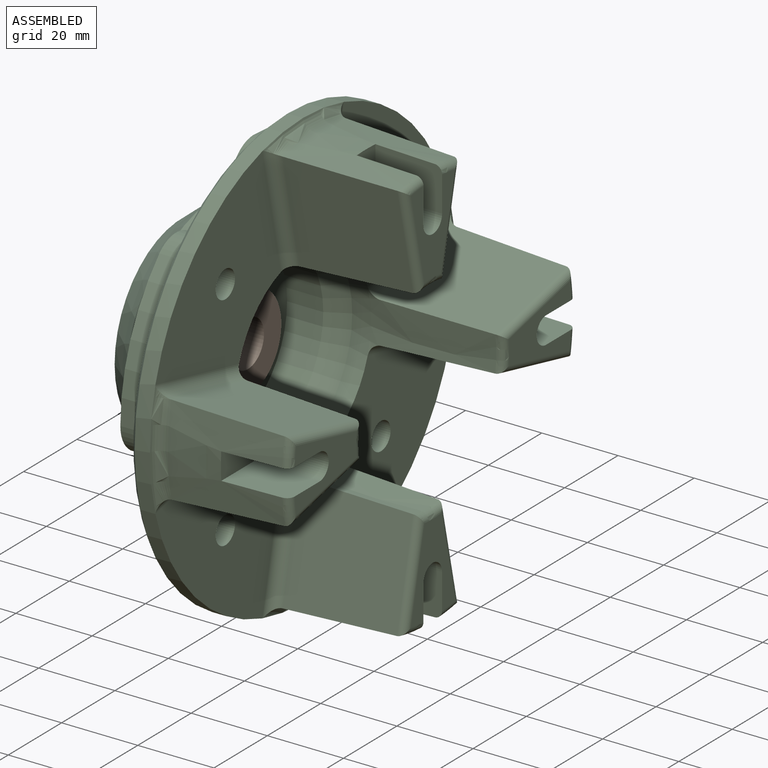
[diagram: assembled view]
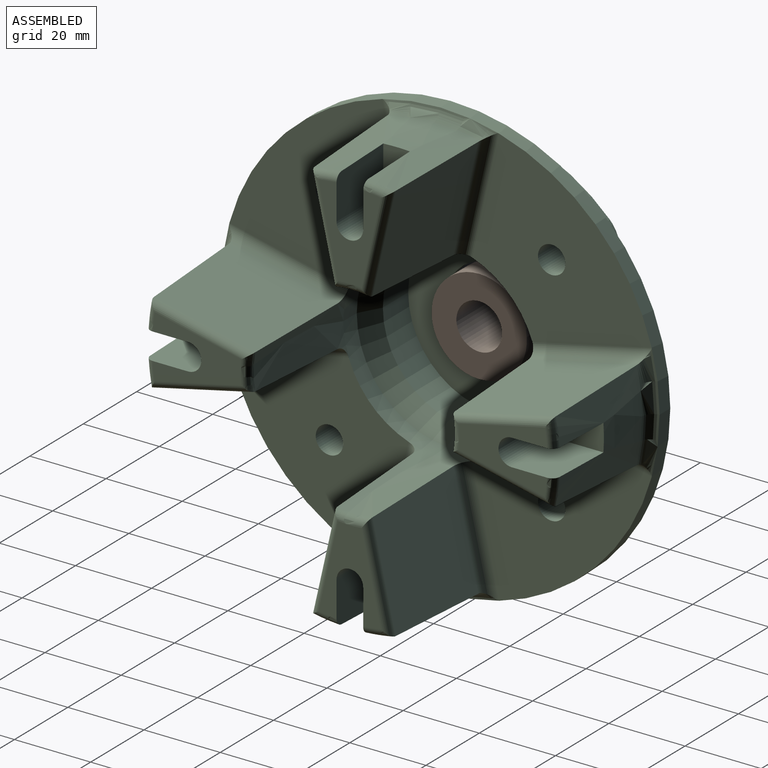
[diagram: assembled view, second angle]
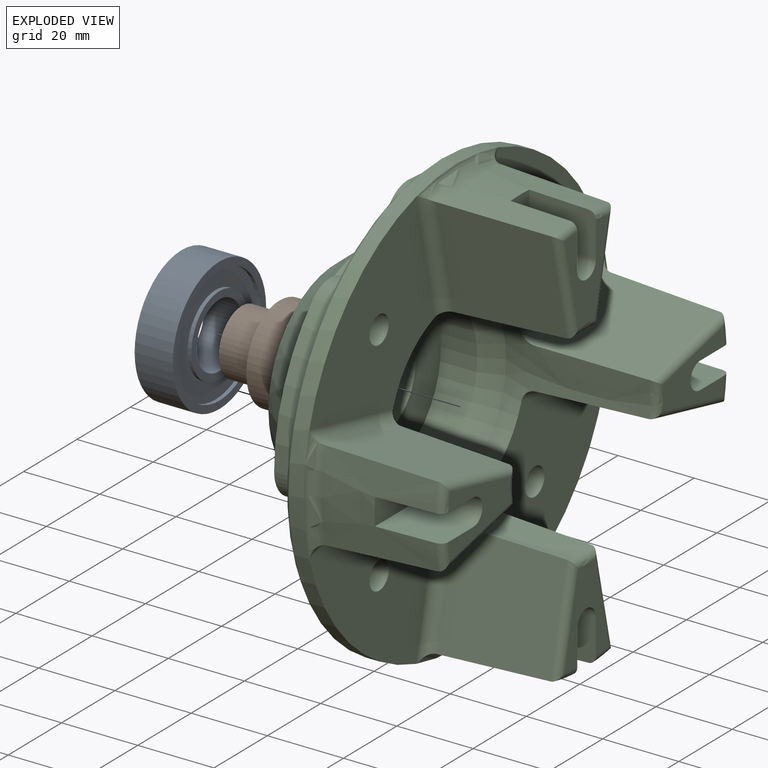
[diagram: exploded view]
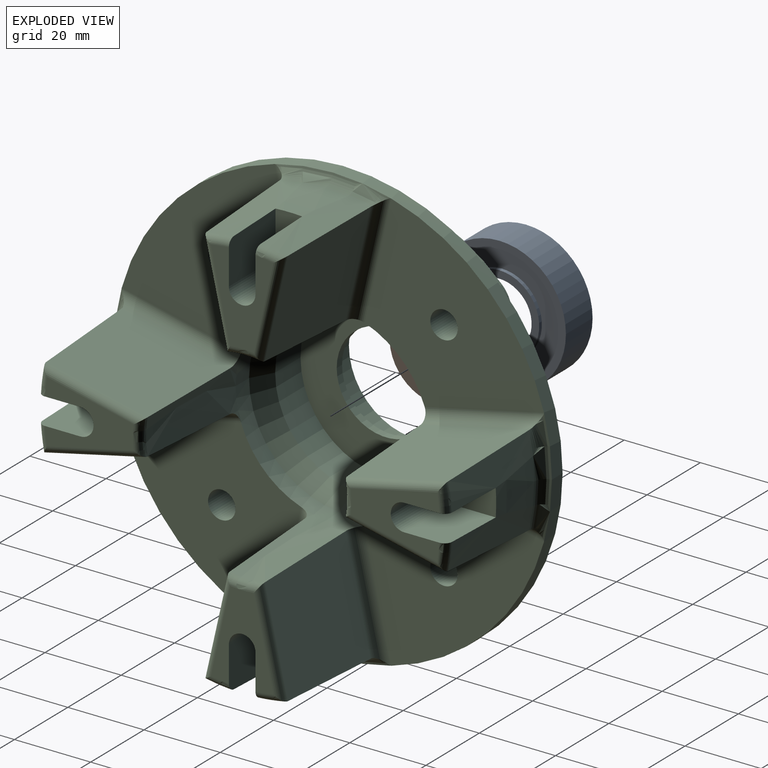
[diagram: exploded view, second angle]
ASSEMBLY  parts=3 mates=4
PART A: 12 faces, bbox 10x35x35 mm
  f0: plane 35x35mm, normal (-1,0,0), area 207.3mm2, adj f1,f11
  f1: cylinder r=15.5mm len=31mm, axis (-1,0,0), area 97.4mm2, adj f0,f2
  f2: plane 31x31mm, normal (-1,0,0), area 408.4mm2, adj f1,f3
  f3: cylinder r=10.5mm len=21mm, axis (-1,0,0), area 66mm2, adj f2,f4
  f4: plane 21x21mm, normal (-1,0,0), area 119.4mm2, adj f3,f5
  f5: cylinder r=8.5mm len=17mm, axis (-1,0,0), area 534.1mm2, adj f4,f6
  f6: plane 21x21mm, normal (1,0,0), area 119.4mm2, adj f5,f7
  f7: cylinder r=10.5mm len=21mm, axis (-1,0,0), area 66mm2, adj f6,f8
  f8: plane 31x31mm, normal (1,0,0), area 408.4mm2, adj f7,f9
  f9: cylinder r=15.5mm len=31mm, axis (-1,0,0), area 97.4mm2, adj f8,f10
  f10: plane 35x35mm, normal (1,0,0), area 207.3mm2, adj f9,f11
  f11: cylinder r=17.5mm len=35mm, axis (-1,0,0), area 1099.6mm2, adj f0,f10
PART B: 6 faces, bbox 17.5x25x25 mm
  f0: cylinder r=8.5mm len=17mm, axis (-1,0,0), area 534.1mm2, adj f1,f5
  f1: plane 17x17mm, normal (-1,0,0), area 113.9mm2, adj f0,f2
  f2: cylinder r=6mm len=17.5mm, axis (-1,0,0), area 659.7mm2, adj f1,f3
  f3: plane 25x25mm, normal (1,0,0), area 377.8mm2, adj f2,f4
  f4: cylinder r=12.5mm len=25mm, axis (-1,0,0), area 589mm2, adj f3,f5
  f5: plane 25x25mm, normal (-1,0,0), area 263.9mm2, adj f0,f4
PART C: 134 faces, bbox 125.4x66.1x125.4 mm
  f0: cone r=55mm half-angle=2deg, axis (0,-1,0), area 554mm2, adj f2,f45,f46,f89,f104,f105,f106,f128
  f1: plane 23.31x16.5mm, normal (0,1,0), area 180.5mm2, adj f2,f88,f89,f90,f91,f129,f130,f131
  f2: torus R=51.88mm, axis (0,1,0), area 19.4mm2, adj f0,f1,f91,f130
  f3: cone r=55mm half-angle=2deg, axis (0,-1,0), area 554mm2, adj f5,f42,f43,f93,f107,f108,f109,f124
  f4: plane 23.31x16.5mm, normal (0,1,0), area 180.5mm2, adj f5,f92,f93,f94,f95,f125,f126,f127
  f5: torus R=51.88mm, axis (0,1,0), area 19.4mm2, adj f3,f4,f95,f126
  f6: cone r=55mm half-angle=2deg, axis (0,-1,0), area 554mm2, adj f8,f39,f40,f97,f110,f111,f112,f120
  f7: plane 23.31x16.5mm, normal (0,1,0), area 180.5mm2, adj f8,f96,f97,f98,f99,f121,f122,f123
  f8: torus R=51.88mm, axis (0,1,0), area 19.4mm2, adj f6,f7,f99,f122
  f9: cone r=55mm half-angle=2deg, axis (0,-1,0), area 554mm2, adj f11,f36,f37,f101,f113,f114,f115,f116
  f10: plane 23.31x16.5mm, normal (0,1,0), area 180.5mm2, adj f11,f100,f101,f102,f103,f117,f118,f119
  f11: torus R=51.88mm, axis (0,1,0), area 19.4mm2, adj f9,f10,f103,f118
  f12: plane 47.12x47.12mm, normal (0,1,0), area 1277.5mm2, adj f28,f30,f56,f106,f107
  f13: plane 47.12x47.12mm, normal (0,1,0), area 1277.5mm2, adj f28,f30,f53,f109,f110
  f14: plane 47.12x47.12mm, normal (0,1,0), area 1277.5mm2, adj f28,f30,f50,f112,f113
  f15: plane 50.36x37.56mm, normal (0,-1,0), area 764.5mm2, adj f16,f33,f58,f59,f60,f62,f69,f70
  f16: cylinder r=50mm len=35.36mm, axis (0,-1,0), area 196.3mm2, adj f15,f62,f70,f83
  f17: plane 50.36x37.56mm, normal (0,-1,0), area 764.5mm2, adj f18,f33,f55,f56,f66,f67,f69,f71
  f18: cylinder r=50mm len=35.36mm, axis (0,-1,0), area 196.3mm2, adj f17,f67,f71,f84
  f19: plane 50.36x37.56mm, normal (0,-1,0), area 764.5mm2, adj f20,f33,f52,f53,f63,f64,f66,f68
  f20: cylinder r=50mm len=35.36mm, axis (0,-1,0), area 196.3mm2, adj f19,f64,f68,f76
  f21: plane 50.36x37.56mm, normal (0,-1,0), area 764.5mm2, adj f32,f33,f49,f50,f60,f61,f63,f65
  f22: cylinder r=17.5mm len=35mm, axis (0,-1,0), area 989.6mm2, adj f23,f133
  f23: plane 35x35mm, normal (0,-1,0), area 431.2mm2, adj f22,f24
  f24: cylinder r=13mm len=26mm, axis (0,-1,0), area 163.4mm2, adj f23,f25
  f25: plane 45x45mm, normal (0,1,0), area 1059.5mm2, adj f24,f26
  f26: cylinder r=22.5mm len=45mm, axis (0,-1,0), area 1343mm2, adj f25,f27
  f27: cone r=25.5mm half-angle=28.6deg, axis (0,1,0), area 944.7mm2, adj f26,f28
  f28: cylinder r=25.5mm len=51mm, axis (0,-1,0), area 801.1mm2, adj f12,f13,f14,f27,f29,f38,f41,f44
  f29: plane 47.12x47.12mm, normal (0,1,0), area 1277.5mm2, adj f28,f30,f59,f104,f115
  f30: cylinder r=57.5mm len=115mm, axis (0,-1,0), area 1445.1mm2, adj f12,f13,f14,f29,f105,f108,f111,f114
  f31: plane 113x113mm, normal (0,-1,0), area 2183mm2, adj f72,f73,f74,f75,f76,f77,f78,f79
  f32: cylinder r=50mm len=35.36mm, axis (0,-1,0), area 196.3mm2, adj f21,f61,f65,f75
  f33: cylinder r=32.5mm len=65mm, axis (0,-1,0), area 2042mm2, adj f15,f17,f19,f21,f34
  f34: cone r=25mm half-angle=39.8deg, axis (0,1,0), area 2116.3mm2, adj f33,f35
  f35: plane 50x50mm, normal (0,-1,0), area 888.3mm2, adj f34,f133
  f36: plane 29.19x28.6mm, normal (-0.97,0.03,-0.22), area 825.7mm2, adj f9,f38,f100,f113
  f37: plane 29.19x28.6mm, normal (0.97,0.03,-0.22), area 825.7mm2, adj f9,f38,f103,f115
  f38: cone r=25.5mm half-angle=2deg, axis (0,1,0), area 331.8mm2, adj f28,f36,f37,f102,f113,f115
  f39: plane 29.19x28.6mm, normal (0.22,0.03,-0.97), area 825.7mm2, adj f6,f41,f96,f110
  f40: plane 29.19x28.6mm, normal (0.22,0.03,0.97), area 825.7mm2, adj f6,f41,f99,f112
  f41: cone r=25.5mm half-angle=2deg, axis (0,1,0), area 331.8mm2, adj f28,f39,f40,f98,f110,f112
  f42: plane 29.19x28.6mm, normal (0.97,0.03,0.22), area 825.7mm2, adj f3,f44,f92,f107
  f43: plane 29.19x28.6mm, normal (-0.97,0.03,0.22), area 825.7mm2, adj f3,f44,f95,f109
  f44: cone r=25.5mm half-angle=2deg, axis (0,1,0), area 331.8mm2, adj f28,f42,f43,f94,f107,f109
  f45: plane 29.19x28.6mm, normal (-0.22,0.03,0.97), area 825.7mm2, adj f0,f47,f88,f104
  f46: plane 29.19x28.6mm, normal (-0.22,0.03,-0.97), area 825.7mm2, adj f0,f47,f91,f106
  f47: cone r=25.5mm half-angle=2deg, axis (0,1,0), area 331.8mm2, adj f28,f45,f46,f90,f104,f106
  f48: cone r=0mm half-angle=59deg, axis (0,-1,0), area 47.5mm2, adj f49
  f49: cylinder r=3.6mm len=25mm, axis (0,-1,0), area 565.5mm2, adj f21,f48
  f50: cylinder r=3.6mm len=13mm, axis (0,-1,0), area 294.1mm2, adj f14,f21
  f51: cone r=0mm half-angle=59deg, axis (0,-1,0), area 47.5mm2, adj f52
  f52: cylinder r=3.6mm len=25mm, axis (0,-1,0), area 565.5mm2, adj f19,f51
  f53: cylinder r=3.6mm len=13mm, axis (0,-1,0), area 294.1mm2, adj f13,f19
  f54: cone r=0mm half-angle=59deg, axis (0,-1,0), area 47.5mm2, adj f55
  f55: cylinder r=3.6mm len=25mm, axis (0,-1,0), area 565.5mm2, adj f17,f54
  f56: cylinder r=3.6mm len=13mm, axis (0,-1,0), area 294.1mm2, adj f12,f17
  f57: cone r=0mm half-angle=59deg, axis (0,-1,0), area 47.5mm2, adj f58
  f58: cylinder r=3.6mm len=25mm, axis (0,-1,0), area 565.5mm2, adj f15,f57
  f59: cylinder r=3.6mm len=13mm, axis (0,-1,0), area 294.1mm2, adj f15,f29
  f60: cylinder r=7.11mm len=13.39mm, axis (0,-1,0), area 104.9mm2, adj f15,f21,f61,f62,f79
  f61: cylinder r=8.75mm len=11.32mm, axis (0,-1,0), area 81.8mm2, adj f21,f32,f60,f77
  f62: cylinder r=8.75mm len=13.92mm, axis (0,-1,0), area 81.8mm2, adj f15,f16,f60,f81
  f63: cylinder r=7.11mm len=13.39mm, axis (0,-1,0), area 104.9mm2, adj f19,f21,f64,f65,f72
  f64: cylinder r=8.75mm len=11.32mm, axis (0,-1,0), area 81.8mm2, adj f19,f20,f63,f74
  f65: cylinder r=8.75mm len=13.92mm, axis (0,-1,0), area 81.8mm2, adj f21,f32,f63,f73
  f66: cylinder r=7.11mm len=13.39mm, axis (0,-1,0), area 104.9mm2, adj f17,f19,f67,f68,f80
  f67: cylinder r=8.75mm len=11.32mm, axis (0,-1,0), area 81.8mm2, adj f17,f18,f66,f82
  f68: cylinder r=8.75mm len=13.92mm, axis (0,-1,0), area 81.8mm2, adj f19,f20,f66,f78
  f69: cylinder r=7.11mm len=13.39mm, axis (0,-1,0), area 104.9mm2, adj f15,f17,f70,f71,f87
  f70: cylinder r=8.75mm len=11.32mm, axis (0,-1,0), area 81.8mm2, adj f15,f16,f69,f85
  f71: cylinder r=8.75mm len=13.92mm, axis (0,-1,0), area 81.8mm2, adj f17,f18,f69,f86
  f72: torus R=4.11mm, axis (0,1,0), area 83.7mm2, adj f31,f63,f73,f74
  f73: torus R=11.75mm, axis (0,1,0), area 86.7mm2, adj f31,f65,f72,f75
  f74: torus R=11.75mm, axis (0,1,0), area 86.7mm2, adj f31,f64,f72,f76
  f75: torus R=53mm, axis (0,1,0), area 189.1mm2, adj f31,f32,f73,f77
  f76: torus R=53mm, axis (0,1,0), area 189.1mm2, adj f20,f31,f74,f78
  f77: torus R=11.75mm, axis (0,1,0), area 86.7mm2, adj f31,f61,f75,f79
  f78: torus R=11.75mm, axis (0,1,0), area 86.7mm2, adj f31,f68,f76,f80
  f79: torus R=4.11mm, axis (0,1,0), area 83.7mm2, adj f31,f60,f77,f81
  f80: torus R=4.11mm, axis (0,1,0), area 83.7mm2, adj f31,f66,f78,f82
  f81: torus R=11.75mm, axis (0,1,0), area 86.7mm2, adj f31,f62,f79,f83
  f82: torus R=11.75mm, axis (0,1,0), area 86.7mm2, adj f31,f67,f80,f84
  f83: torus R=53mm, axis (0,1,0), area 189.1mm2, adj f16,f31,f81,f85
  f84: torus R=53mm, axis (0,1,0), area 189.1mm2, adj f18,f31,f82,f86
  f85: torus R=11.75mm, axis (0,1,0), area 86.7mm2, adj f31,f70,f83,f87
  f86: torus R=11.75mm, axis (0,1,0), area 86.7mm2, adj f31,f71,f84,f87
  f87: torus R=4.11mm, axis (0,1,0), area 83.7mm2, adj f31,f69,f85,f86
  f88: cylinder r=2mm len=27.05mm, axis (0.98,0,0.22), area 79.3mm2, adj f1,f45,f89,f90
  f89: torus R=51.88mm, axis (0,1,0), area 19.4mm2, adj f0,f1,f88,f129
  f90: torus R=28.62mm, axis (0,1,0), area 25.1mm2, adj f1,f47,f88,f91
  f91: cylinder r=2mm len=27.05mm, axis (-0.98,0,0.22), area 79.3mm2, adj f1,f2,f46,f90
  f92: cylinder r=2mm len=27.05mm, axis (0.22,0,-0.98), area 79.3mm2, adj f4,f42,f93,f94
  f93: torus R=51.88mm, axis (0,1,0), area 19.4mm2, adj f3,f4,f92,f125
  f94: torus R=28.62mm, axis (0,1,0), area 25.1mm2, adj f4,f44,f92,f95
  f95: cylinder r=2mm len=27.05mm, axis (0.22,0,0.98), area 79.3mm2, adj f4,f5,f43,f94
  f96: cylinder r=2mm len=27.05mm, axis (-0.98,0,-0.22), area 79.3mm2, adj f7,f39,f97,f98
  f97: torus R=51.88mm, axis (0,1,0), area 19.4mm2, adj f6,f7,f96,f121
  f98: torus R=28.62mm, axis (0,1,0), area 25.1mm2, adj f7,f41,f96,f99
  f99: cylinder r=2mm len=27.05mm, axis (0.98,0,-0.22), area 79.3mm2, adj f7,f8,f40,f98
  f100: cylinder r=2mm len=27.05mm, axis (-0.22,0,0.98), area 79.3mm2, adj f10,f36,f101,f102
  f101: torus R=51.88mm, axis (0,1,0), area 19.4mm2, adj f9,f10,f100,f117
  f102: torus R=28.62mm, axis (0,1,0), area 25.1mm2, adj f10,f38,f100,f103
  f103: cylinder r=2mm len=27.05mm, axis (-0.22,0,-0.98), area 79.3mm2, adj f10,f11,f37,f102
  f104: cylinder r=3mm len=31.96mm, axis (-0.98,0,-0.22), area 140.3mm2, adj f0,f29,f45,f47,f105
  f105: torus R=57.9mm, axis (0,-1,0), area 110.9mm2, adj f0,f30,f104,f106
  f106: cylinder r=3mm len=31.96mm, axis (0.98,0,-0.22), area 140.3mm2, adj f0,f12,f46,f47,f105
  f107: cylinder r=3mm len=31.96mm, axis (-0.22,0,0.98), area 140.3mm2, adj f3,f12,f42,f44,f108
  f108: torus R=57.9mm, axis (0,-1,0), area 110.9mm2, adj f3,f30,f107,f109
  f109: cylinder r=3mm len=31.96mm, axis (-0.22,0,-0.98), area 140.3mm2, adj f3,f13,f43,f44,f108
  f110: cylinder r=3mm len=31.96mm, axis (0.98,0,0.22), area 140.3mm2, adj f6,f13,f39,f41,f111
  f111: torus R=57.9mm, axis (0,-1,0), area 110.9mm2, adj f6,f30,f110,f112
  f112: cylinder r=3mm len=31.96mm, axis (-0.98,0,0.22), area 140.3mm2, adj f6,f14,f40,f41,f111
  f113: cylinder r=3mm len=31.96mm, axis (0.22,0,-0.98), area 140.3mm2, adj f9,f14,f36,f38,f114
  f114: torus R=57.9mm, axis (0,-1,0), area 110.9mm2, adj f9,f30,f113,f115
  f115: cylinder r=3mm len=31.96mm, axis (0.22,0,0.98), area 140.3mm2, adj f9,f29,f37,f38,f114
  f116: plane 15.42x7mm, normal (0,1,0), area 102.4mm2, adj f9,f117,f118,f119
  f117: plane 17.56x11.87mm, normal (1,0,0), area 200.5mm2, adj f9,f10,f101,f116,f119
  f118: plane 17.56x11.87mm, normal (-1,0,0), area 200.5mm2, adj f9,f10,f11,f116,f119
  f119: cylinder r=3.5mm len=17.5mm, axis (0,1,0), area 192.4mm2, adj f10,f116,f117,f118
  f120: plane 15.42x7mm, normal (0,1,0), area 102.4mm2, adj f6,f121,f122,f123
  f121: plane 17.56x11.87mm, normal (0,0,1), area 200.5mm2, adj f6,f7,f97,f120,f123
  f122: plane 17.56x11.87mm, normal (0,0,-1), area 200.5mm2, adj f6,f7,f8,f120,f123
  f123: cylinder r=3.5mm len=17.5mm, axis (0,1,0), area 192.4mm2, adj f7,f120,f121,f122
  f124: plane 15.42x7mm, normal (0,1,0), area 102.4mm2, adj f3,f125,f126,f127
  f125: plane 17.56x11.87mm, normal (-1,0,0), area 200.5mm2, adj f3,f4,f93,f124,f127
  f126: plane 17.56x11.87mm, normal (1,0,0), area 200.5mm2, adj f3,f4,f5,f124,f127
  f127: cylinder r=3.5mm len=17.5mm, axis (0,1,0), area 192.4mm2, adj f4,f124,f125,f126
  f128: plane 15.42x7mm, normal (0,1,0), area 102.4mm2, adj f0,f129,f130,f131
  f129: plane 17.56x11.87mm, normal (0,0,-1), area 200.5mm2, adj f0,f1,f89,f128,f131
  f130: plane 17.56x11.87mm, normal (0,0,1), area 200.5mm2, adj f0,f1,f2,f128,f131
  f131: cylinder r=3.5mm len=17.5mm, axis (0,1,0), area 192.4mm2, adj f1,f128,f129,f130
  f132: cone r=56.5mm half-angle=45deg, axis (0,1,0), area 506.5mm2, adj f30,f31
  f133: cone r=17.5mm half-angle=45deg, axis (0,-1,0), area 159.9mm2, adj f22,f35
PLACE A rot(axis=(1,0,0),0deg) t=(43.7,-44.68,45.51)mm
PLACE B rot(axis=(1,0,0),0deg) t=(48.7,-44.68,45.51)mm
PLACE C rot(axis=(-0.58,-0.58,-0.58),120deg) t=(104.7,-44.68,45.51)mm
MATE cylindrical C.f0 <-> A.f1  axis (-1,0,0) through (44.2,-44.68,45.51)mm
MATE planar C.f0 <-> A.f1  axis (-1,0,0) through (48.7,-44.68,45.51)mm
MATE cylindrical A.f1 <-> B.f0  axis (-1,0,0) through (38.7,-44.68,45.51)mm
MATE planar A.f1 <-> B.f0  axis (1,0,0) through (48.7,-44.68,45.51)mm
